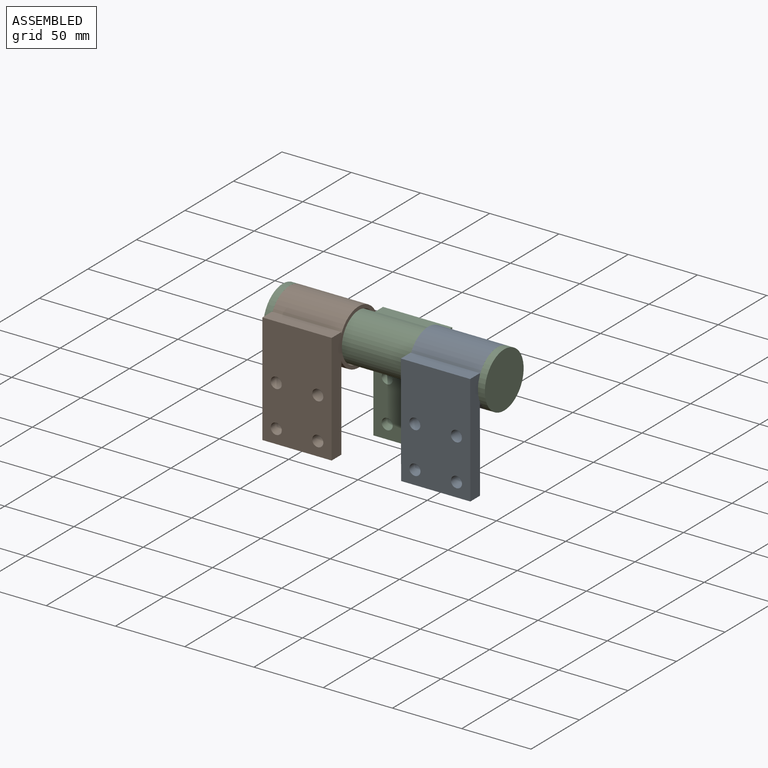
[diagram: assembled view]
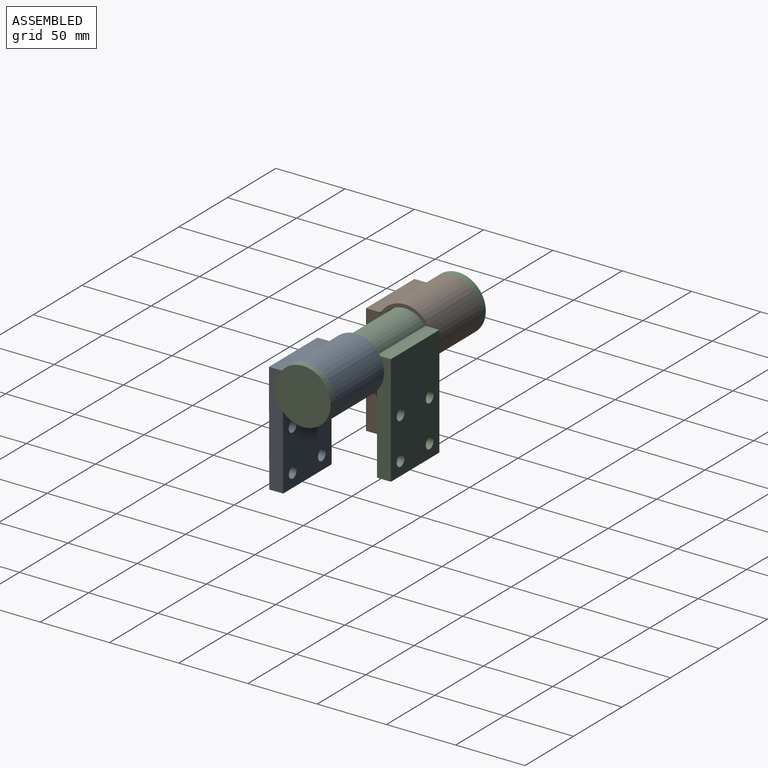
[diagram: assembled view, second angle]
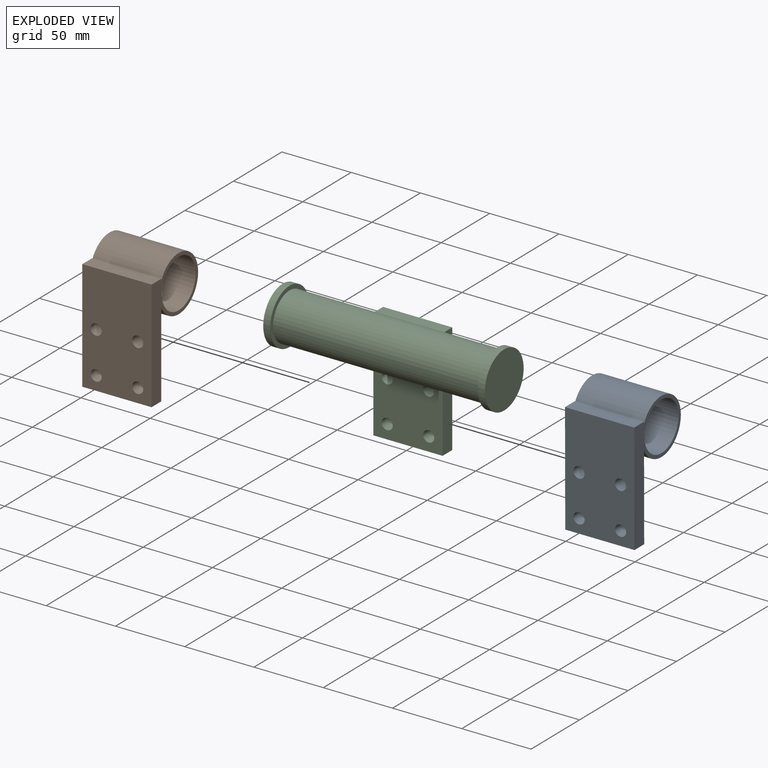
[diagram: exploded view]
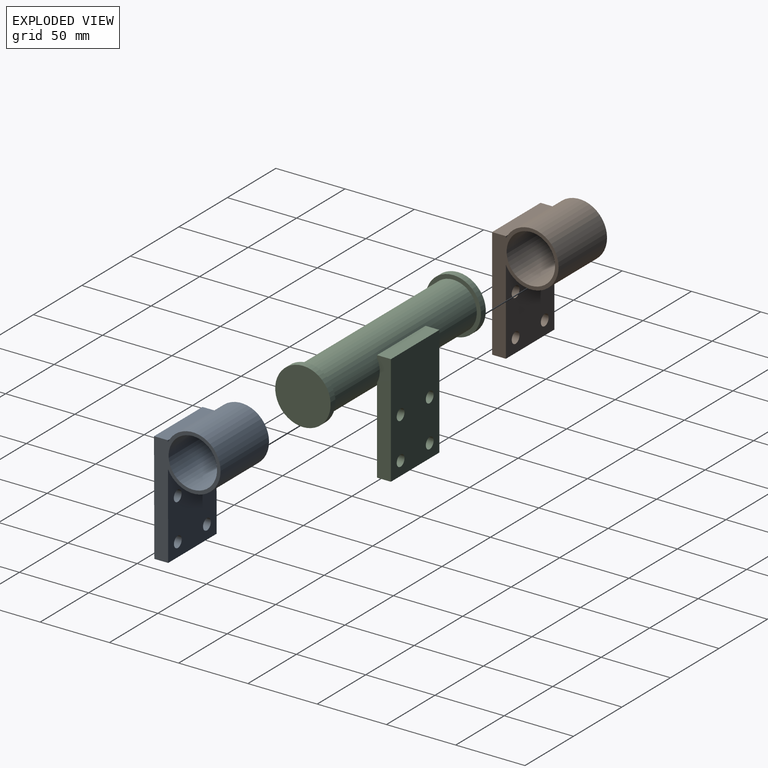
[diagram: exploded view, second angle]
ASSEMBLY  parts=3 mates=4
PART A: 13 faces, bbox 48x50x90 mm
  f0: cylinder r=17.5mm len=50mm, axis (0,1,0), area 5497.8mm2, adj f2,f3
  f1: cylinder r=20mm len=50mm, axis (0,1,0), area 5381.1mm2, adj f2,f3,f4,f5
  f2: plane 90x48mm, normal (0,-1,0), area 1071mm2, adj f0,f1,f4,f5,f6,f7,f8
  f3: plane 90x48mm, normal (0,1,0), area 1071mm2, adj f0,f1,f4,f5,f6,f7,f8
  f4: plane 61.28x50mm, normal (-1,0,0), area 2863mm2, adj f1,f2,f3,f8,f9,f10,f11,f12
  f5: plane 50x1.28mm, normal (-1,0,0), area 64.1mm2, adj f1,f2,f3,f6
  f6: plane 50x10mm, normal (0,0,-1), area 500mm2, adj f2,f3,f5,f7
  f7: plane 80x50mm, normal (1,0,0), area 3798.9mm2, adj f2,f3,f6,f8,f9,f10,f11,f12
  f8: plane 50x10mm, normal (0,0,1), area 500mm2, adj f2,f3,f4,f7
  f9: cylinder r=4mm len=10mm, axis (1,0,0), area 251.3mm2, adj f4,f7
  f10: cylinder r=4mm len=10mm, axis (1,0,0), area 251.3mm2, adj f4,f7
  f11: cylinder r=4mm len=10mm, axis (1,0,0), area 251.3mm2, adj f4,f7
  f12: cylinder r=4mm len=10mm, axis (1,0,0), area 251.3mm2, adj f4,f7
PART B: same geometry as A
PART C: 18 faces, bbox 45x160x90 mm
  f0: cylinder r=17mm len=150mm, axis (0,1,0), area 15189.2mm2, adj f1,f2,f6,f7,f10,f13
  f1: plane 62x50mm, normal (1,0,0), area 2898.9mm2, adj f0,f4,f6,f7,f14,f15,f16,f17
  f2: plane 50x2mm, normal (1,0,0), area 100mm2, adj f0,f3,f6,f7
  f3: plane 50x10mm, normal (0,0,-1), area 500mm2, adj f2,f5,f6,f7
  f4: plane 50x10mm, normal (0,0,1), area 500mm2, adj f1,f5,f6,f7
  f5: plane 80x50mm, normal (-1,0,0), area 3798.9mm2, adj f3,f4,f6,f7,f14,f15,f16,f17
  f6: plane 80x10mm, normal (0,-1,0), area 778.4mm2, adj f0,f1,f2,f3,f4,f5
  f7: plane 80x10mm, normal (0,1,0), area 778.4mm2, adj f0,f1,f2,f3,f4,f5
  f8: cylinder r=20mm len=40mm, axis (0,-1,0), area 628.3mm2, adj f9,f10
  f9: plane 40x40mm, normal (0,1,0), area 1256.6mm2, adj f8
  f10: plane 40x40mm, normal (0,-1,0), area 348.7mm2, adj f0,f8
  f11: cylinder r=20mm len=40mm, axis (0,1,0), area 628.3mm2, adj f12,f13
  f12: plane 40x40mm, normal (0,-1,0), area 1256.6mm2, adj f11
  f13: plane 40x40mm, normal (0,1,0), area 348.7mm2, adj f0,f11
  f14: cylinder r=4mm len=10mm, axis (-1,0,0), area 251.3mm2, adj f1,f5
  f15: cylinder r=4mm len=10mm, axis (-1,0,0), area 251.3mm2, adj f1,f5
  f16: cylinder r=4mm len=10mm, axis (-1,0,0), area 251.3mm2, adj f1,f5
  f17: cylinder r=4mm len=10mm, axis (-1,0,0), area 251.3mm2, adj f1,f5
PLACE A rot(axis=(-0.71,0.71,0),179.9deg) t=(-474.57,1085.98,465.78)mm
PLACE B rot(axis=(-0.71,0.71,0),180deg) t=(-574.57,1085.98,465.78)mm
PLACE C rot(axis=(-0.71,0.71,0),180deg) t=(-574.57,1005.98,465.78)mm
MATE planar A.f2 <-> C.f8  axis (1,0,0) through (-424.57,1069.27,443.33)mm
MATE cylindrical C.f0 <-> A.f1  axis (-1,0,0) through (-499.57,1085.98,465.78)mm
MATE cylindrical B.f0 <-> C.f0  axis (1,0,0) through (-524.57,1085.98,465.78)mm
MATE planar C.f8 <-> B.f3  axis (1,0,0) through (-574.57,1085.98,465.78)mm
